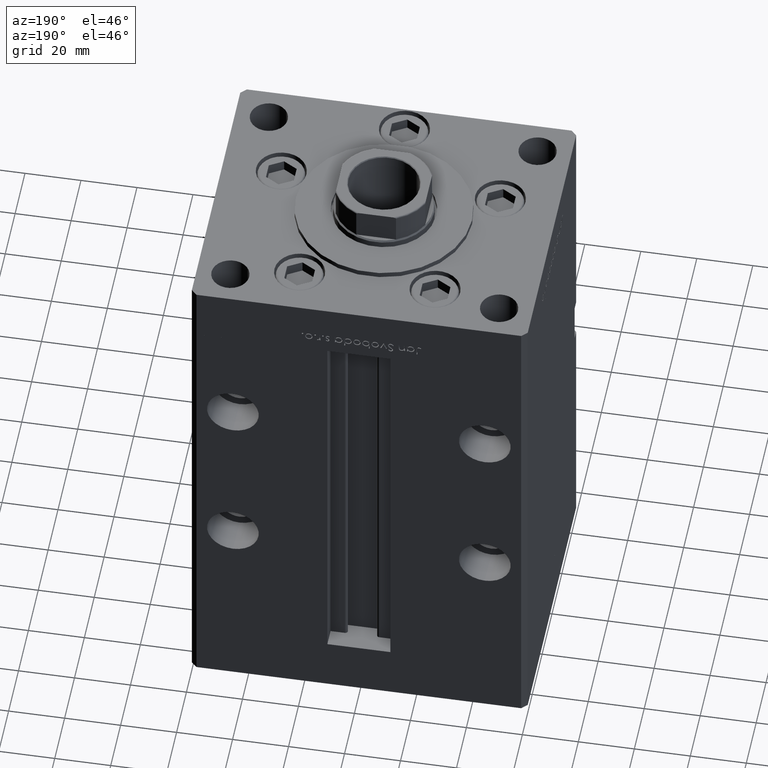
[diagram: clean part render]
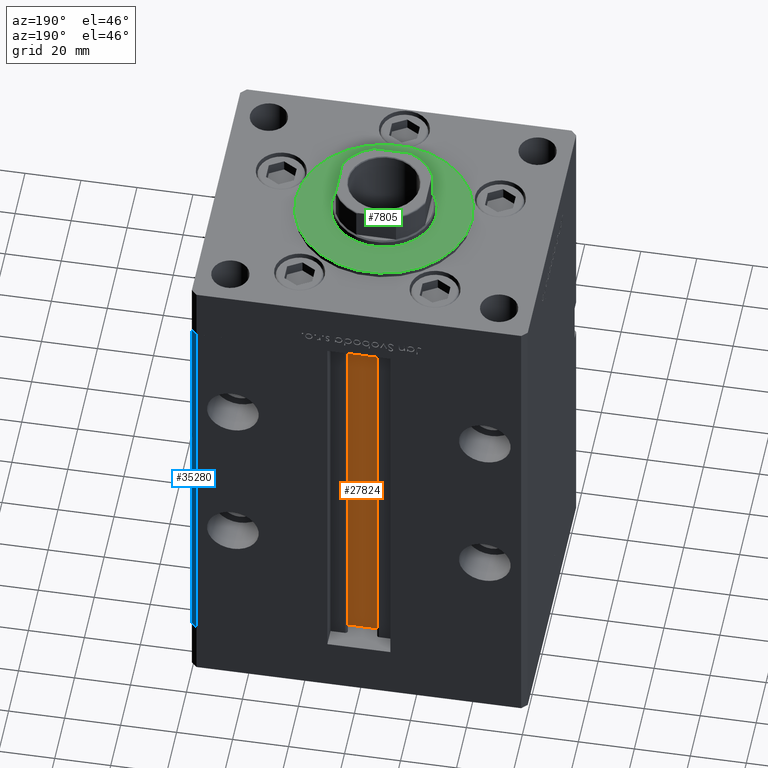
[diagram: same view with three faces highlighted in distinct colors, each labeled with its STEP entity id]
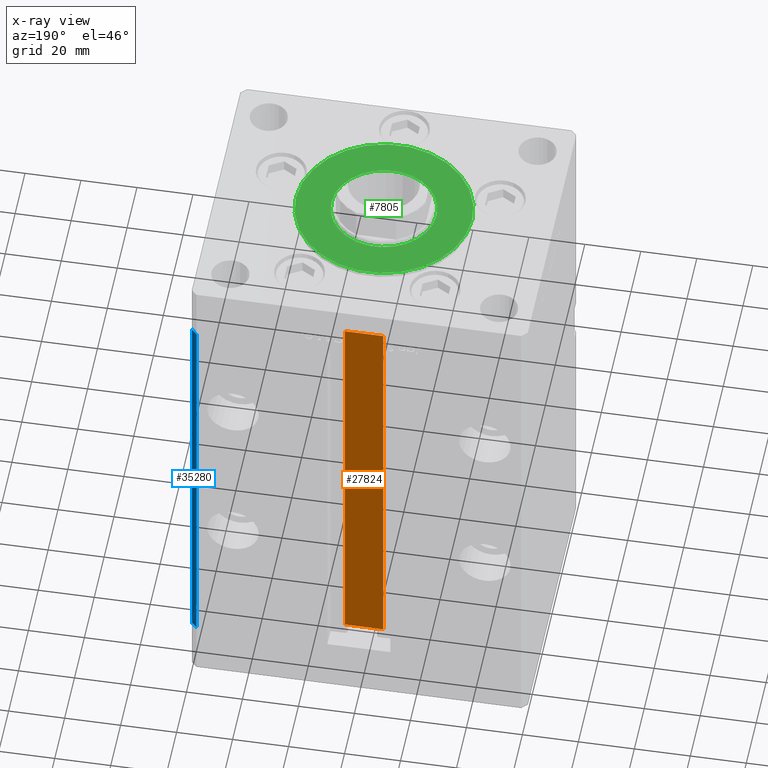
[diagram: x-ray of the same camera — body ghosted, the three highlighted faces saturated]
A machine part, auxiliary view with three faces highlighted in distinct colors.
The next image is the same camera in x-ray (body ghosted, the three faces saturated) — at least one of them is partly hidden behind the body in this view.
Their STEP definitions:

[orange] entity #27824 — the highlighted planar face has unit normal (0, -1, 0).
#201 = LINE ( 'NONE', #48995, #23156 ) ;
#648 = DIRECTION ( 'NONE',  ( 1.000000000000000000, -0.000000000000000000, -0.000000000000000000 ) ) ;
#5124 = DIRECTION ( 'NONE',  ( 0.000000000000000000, 0.000000000000000000, -1.000000000000000000 ) ) ;
#5471 = EDGE_CURVE ( 'NONE', #41080, #25071, #16479, .T. ) ;
#6975 = VERTEX_POINT ( 'NONE', #32912 ) ;
#7987 = DIRECTION ( 'NONE',  ( -1.000000000000000000, 0.000000000000000000, 0.000000000000000000 ) ) ;
#9147 = VECTOR ( 'NONE', #648, 1000.000000000000000 ) ;
#10749 = VERTEX_POINT ( 'NONE', #14632 ) ;
#11932 = CARTESIAN_POINT ( 'NONE',  ( 6.876153656360465050, 40.49999999999987210, 0.000000000000000000 ) ) ;
#14632 = CARTESIAN_POINT ( 'NONE',  ( -6.876153656360465050, 40.49999999999987210, 148.5000000000000000 ) ) ;
#15870 = CARTESIAN_POINT ( 'NONE',  ( 6.876153656360465050, 40.49999999999987210, 0.000000000000000000 ) ) ;
#16479 = LINE ( 'NONE', #11932, #9147 ) ;
#16963 = EDGE_CURVE ( 'NONE', #6975, #10749, #201, .T. ) ;
#18071 = ORIENTED_EDGE ( 'NONE', *, *, #27487, .T. ) ;
#21444 = CARTESIAN_POINT ( 'NONE',  ( -6.876153656360465050, 40.49999999999987210, 0.000000000000000000 ) ) ;
#22498 = FACE_OUTER_BOUND ( 'NONE', #37939, .T. ) ;
#23156 = VECTOR ( 'NONE', #7987, 1000.000000000000000 ) ;
#25071 = VERTEX_POINT ( 'NONE', #47575 ) ;
#27271 = ORIENTED_EDGE ( 'NONE', *, *, #47202, .F. ) ;
#27487 = EDGE_CURVE ( 'NONE', #41080, #10749, #36730, .T. ) ;
#27824 = ADVANCED_FACE ( 'NONE', ( #22498 ), #34825, .F. ) ;
#29516 = ORIENTED_EDGE ( 'NONE', *, *, #16963, .F. ) ;
#30819 = CARTESIAN_POINT ( 'NONE',  ( 6.876153656360465050, 40.49999999999987210, 0.000000000000000000 ) ) ;
#32703 = CARTESIAN_POINT ( 'NONE',  ( -6.876153656360465050, 40.49999999999987210, 0.000000000000000000 ) ) ;
#32912 = CARTESIAN_POINT ( 'NONE',  ( 6.876153656360465050, 40.49999999999987210, 148.5000000000000000 ) ) ;
#34071 = ORIENTED_EDGE ( 'NONE', *, *, #5471, .F. ) ;
#34441 = VECTOR ( 'NONE', #49063, 1000.000000000000000 ) ;
#34825 = PLANE ( 'NONE',  #49886 ) ;
#36730 = LINE ( 'NONE', #32703, #34441 ) ;
#37939 = EDGE_LOOP ( 'NONE', ( #27271, #34071, #18071, #29516 ) ) ;
#40798 = DIRECTION ( 'NONE',  ( -0.000000000000000000, -0.000000000000000000, 1.000000000000000000 ) ) ;
#41080 = VERTEX_POINT ( 'NONE', #21444 ) ;
#44160 = VECTOR ( 'NONE', #40798, 1000.000000000000000 ) ;
#47167 = DIRECTION ( 'NONE',  ( 0.000000000000000000, -1.000000000000000000, -0.000000000000000000 ) ) ;
#47202 = EDGE_CURVE ( 'NONE', #25071, #6975, #52581, .T. ) ;
#47575 = CARTESIAN_POINT ( 'NONE',  ( 6.876153656360465050, 40.49999999999987210, 0.000000000000000000 ) ) ;
#48995 = CARTESIAN_POINT ( 'NONE',  ( 0.000000000000000000, 40.49999999999987210, 148.5000000000000000 ) ) ;
#49063 = DIRECTION ( 'NONE',  ( -0.000000000000000000, -0.000000000000000000, 1.000000000000000000 ) ) ;
#49886 = AXIS2_PLACEMENT_3D ( 'NONE', #30819, #47167, #5124 ) ;
#52581 = LINE ( 'NONE', #15870, #44160 ) ;

[blue] entity #35280 — the highlighted planar face has unit normal (0.7071, 0.7071, 0).
#2180 = CARTESIAN_POINT ( 'NONE',  ( 57.99999999999999289, 51.00000000000000711, 0.000000000000000000 ) ) ;
#2839 = VERTEX_POINT ( 'NONE', #19051 ) ;
#4262 = VERTEX_POINT ( 'NONE', #47240 ) ;
#5690 = LINE ( 'NONE', #2180, #16328 ) ;
#6137 = CARTESIAN_POINT ( 'NONE',  ( 57.99999999999999289, 51.00000000000000711, 148.5000000000000000 ) ) ;
#6428 = CARTESIAN_POINT ( 'NONE',  ( 57.99999999999999289, 51.00000000000000711, 148.5000000000000000 ) ) ;
#6680 = VERTEX_POINT ( 'NONE', #16442 ) ;
#10104 = CARTESIAN_POINT ( 'NONE',  ( 57.99999999999999289, 51.00000000000000711, 148.5000000000000000 ) ) ;
#10267 = LINE ( 'NONE', #26605, #31077 ) ;
#10494 = DIRECTION ( 'NONE',  ( 0.7071067811865500152, -0.7071067811865451302, 0.000000000000000000 ) ) ;
#11020 = ORIENTED_EDGE ( 'NONE', *, *, #52583, .F. ) ;
#14616 = PLANE ( 'NONE',  #39001 ) ;
#14660 = LINE ( 'NONE', #10104, #52874 ) ;
#15518 = ORIENTED_EDGE ( 'NONE', *, *, #17690, .F. ) ;
#15654 = DIRECTION ( 'NONE',  ( 0.7071067811865451302, 0.7071067811865499042, -0.000000000000000000 ) ) ;
#16328 = VECTOR ( 'NONE', #10494, 1000.000000000000114 ) ;
#16442 = CARTESIAN_POINT ( 'NONE',  ( 60.00000000000001421, 49.00000000000000000, 0.000000000000000000 ) ) ;
#17467 = EDGE_LOOP ( 'NONE', ( #15518, #11020, #40262, #35853 ) ) ;
#17690 = EDGE_CURVE ( 'NONE', #4262, #6680, #5690, .T. ) ;
#19051 = CARTESIAN_POINT ( 'NONE',  ( 60.00000000000001421, 49.00000000000000000, 148.5000000000000000 ) ) ;
#20607 = VERTEX_POINT ( 'NONE', #6137 ) ;
#22634 = FACE_OUTER_BOUND ( 'NONE', #17467, .T. ) ;
#26605 = CARTESIAN_POINT ( 'NONE',  ( 60.00000000000001421, 49.00000000000000000, 148.5000000000000000 ) ) ;
#29530 = EDGE_CURVE ( 'NONE', #2839, #6680, #10267, .T. ) ;
#29718 = VECTOR ( 'NONE', #35604, 1000.000000000000114 ) ;
#31077 = VECTOR ( 'NONE', #42963, 1000.000000000000000 ) ;
#31209 = DIRECTION ( 'NONE',  ( -0.7071067811865499042, 0.7071067811865451302, 0.000000000000000000 ) ) ;
#35280 = ADVANCED_FACE ( 'NONE', ( #22634 ), #14616, .T. ) ;
#35604 = DIRECTION ( 'NONE',  ( 0.7071067811865500152, -0.7071067811865451302, 0.000000000000000000 ) ) ;
#35853 = ORIENTED_EDGE ( 'NONE', *, *, #29530, .T. ) ;
#36486 = EDGE_CURVE ( 'NONE', #20607, #2839, #51182, .T. ) ;
#39001 = AXIS2_PLACEMENT_3D ( 'NONE', #44335, #15654, #31209 ) ;
#40262 = ORIENTED_EDGE ( 'NONE', *, *, #36486, .T. ) ;
#42963 = DIRECTION ( 'NONE',  ( -0.000000000000000000, -0.000000000000000000, -1.000000000000000000 ) ) ;
#44335 = CARTESIAN_POINT ( 'NONE',  ( 57.99999999999999289, 51.00000000000000711, 148.5000000000000000 ) ) ;
#47240 = CARTESIAN_POINT ( 'NONE',  ( 57.99999999999999289, 51.00000000000000711, 0.000000000000000000 ) ) ;
#47344 = DIRECTION ( 'NONE',  ( -0.000000000000000000, -0.000000000000000000, -1.000000000000000000 ) ) ;
#51182 = LINE ( 'NONE', #6428, #29718 ) ;
#52583 = EDGE_CURVE ( 'NONE', #20607, #4262, #14660, .T. ) ;
#52874 = VECTOR ( 'NONE', #47344, 1000.000000000000000 ) ;

[green] entity #7805 — the highlighted planar face has unit normal (0, 0, 1).
#305 = ORIENTED_EDGE ( 'NONE', *, *, #11365, .T. ) ;
#1484 = AXIS2_PLACEMENT_3D ( 'NONE', #31862, #48209, #20845 ) ;
#2187 = CIRCLE ( 'NONE', #12455, 18.75000000000000355 ) ;
#3870 = CARTESIAN_POINT ( 'NONE',  ( 18.75000000000000355, -6.938893903907228378E-15, 2.000000000000000000 ) ) ;
#4079 = VERTEX_POINT ( 'NONE', #3870 ) ;
#5946 = CARTESIAN_POINT ( 'NONE',  ( 0.000000000000000000, -6.938893903907228378E-15, 2.000000000000000000 ) ) ;
#6050 = EDGE_LOOP ( 'NONE', ( #305, #43670 ) ) ;
#6173 = CARTESIAN_POINT ( 'NONE',  ( 0.000000000000000000, -6.938893903907228378E-15, 2.000000000000000000 ) ) ;
#7805 = ADVANCED_FACE ( 'NONE', ( #12104, #20126 ), #49888, .T. ) ;
#7884 = CARTESIAN_POINT ( 'NONE',  ( 31.50000000000000000, -3.081256486593065689E-15, 2.000000000000000000 ) ) ;
#9262 = DIRECTION ( 'NONE',  ( 1.000000000000000000, 0.000000000000000000, 0.000000000000000000 ) ) ;
#11365 = EDGE_CURVE ( 'NONE', #46598, #38329, #48657, .T. ) ;
#12104 = FACE_BOUND ( 'NONE', #18981, .T. ) ;
#12455 = AXIS2_PLACEMENT_3D ( 'NONE', #49203, #32843, #9262 ) ;
#13697 = DIRECTION ( 'NONE',  ( 1.000000000000000000, 0.000000000000000000, 0.000000000000000000 ) ) ;
#17261 = CARTESIAN_POINT ( 'NONE',  ( -31.50000000000000000, -6.938893903907228378E-15, 2.000000000000000000 ) ) ;
#18981 = EDGE_LOOP ( 'NONE', ( #40061, #41413 ) ) ;
#19379 = EDGE_CURVE ( 'NONE', #38329, #46598, #26647, .T. ) ;
#19417 = CIRCLE ( 'NONE', #1484, 18.75000000000000355 ) ;
#20126 = FACE_OUTER_BOUND ( 'NONE', #6050, .T. ) ;
#20299 = AXIS2_PLACEMENT_3D ( 'NONE', #28441, #37289, #33264 ) ;
#20845 = DIRECTION ( 'NONE',  ( 1.000000000000000000, 0.000000000000000000, 0.000000000000000000 ) ) ;
#22270 = DIRECTION ( 'NONE',  ( 1.000000000000000000, 0.000000000000000000, 0.000000000000000000 ) ) ;
#23244 = VERTEX_POINT ( 'NONE', #51554 ) ;
#26558 = DIRECTION ( 'NONE',  ( 0.000000000000000000, 0.000000000000000000, 1.000000000000000000 ) ) ;
#26647 = CIRCLE ( 'NONE', #36052, 31.50000000000000000 ) ;
#28441 = CARTESIAN_POINT ( 'NONE',  ( 0.000000000000000000, -6.938893903907228378E-15, 2.000000000000000000 ) ) ;
#31862 = CARTESIAN_POINT ( 'NONE',  ( 0.000000000000000000, -6.938893903907228378E-15, 2.000000000000000000 ) ) ;
#32843 = DIRECTION ( 'NONE',  ( 0.000000000000000000, 0.000000000000000000, 1.000000000000000000 ) ) ;
#33264 = DIRECTION ( 'NONE',  ( 1.000000000000000000, 0.000000000000000000, -0.000000000000000000 ) ) ;
#35781 = EDGE_CURVE ( 'NONE', #4079, #23244, #2187, .T. ) ;
#36052 = AXIS2_PLACEMENT_3D ( 'NONE', #6173, #39389, #13697 ) ;
#36547 = EDGE_CURVE ( 'NONE', #23244, #4079, #19417, .T. ) ;
#37289 = DIRECTION ( 'NONE',  ( 0.000000000000000000, 0.000000000000000000, 1.000000000000000000 ) ) ;
#38329 = VERTEX_POINT ( 'NONE', #7884 ) ;
#39389 = DIRECTION ( 'NONE',  ( 0.000000000000000000, 0.000000000000000000, 1.000000000000000000 ) ) ;
#40061 = ORIENTED_EDGE ( 'NONE', *, *, #35781, .F. ) ;
#41413 = ORIENTED_EDGE ( 'NONE', *, *, #36547, .F. ) ;
#43539 = AXIS2_PLACEMENT_3D ( 'NONE', #5946, #26558, #22270 ) ;
#43670 = ORIENTED_EDGE ( 'NONE', *, *, #19379, .T. ) ;
#46598 = VERTEX_POINT ( 'NONE', #17261 ) ;
#48209 = DIRECTION ( 'NONE',  ( 0.000000000000000000, 0.000000000000000000, 1.000000000000000000 ) ) ;
#48657 = CIRCLE ( 'NONE', #43539, 31.50000000000000000 ) ;
#49203 = CARTESIAN_POINT ( 'NONE',  ( 0.000000000000000000, -6.938893903907228378E-15, 2.000000000000000000 ) ) ;
#49888 = PLANE ( 'NONE',  #20299 ) ;
#51554 = CARTESIAN_POINT ( 'NONE',  ( -18.75000000000000355, -4.642681155505941194E-15, 2.000000000000000000 ) ) ;